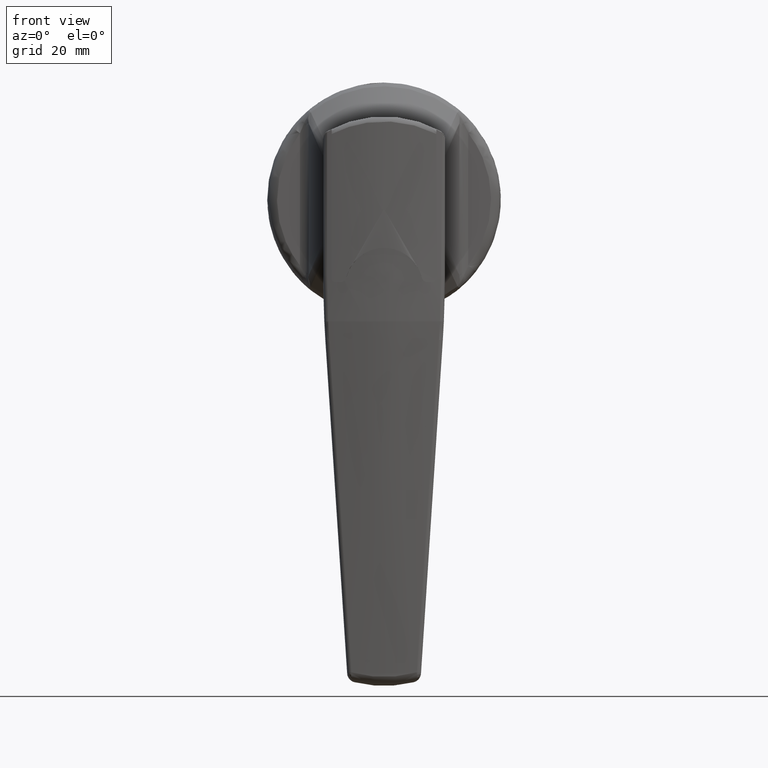
[diagram: clean part render]
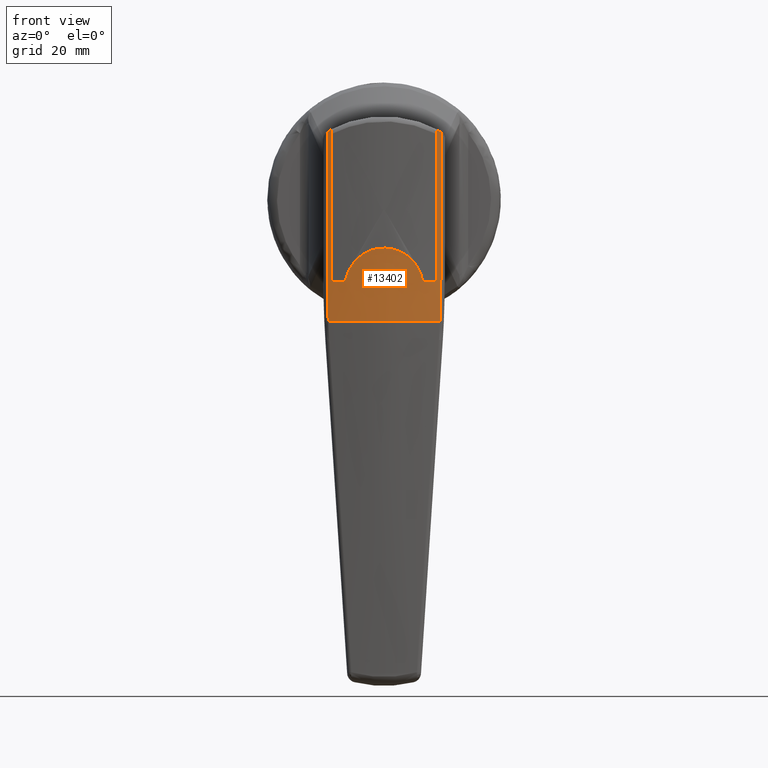
[diagram: same view with one face highlighted and labeled with its STEP entity id]
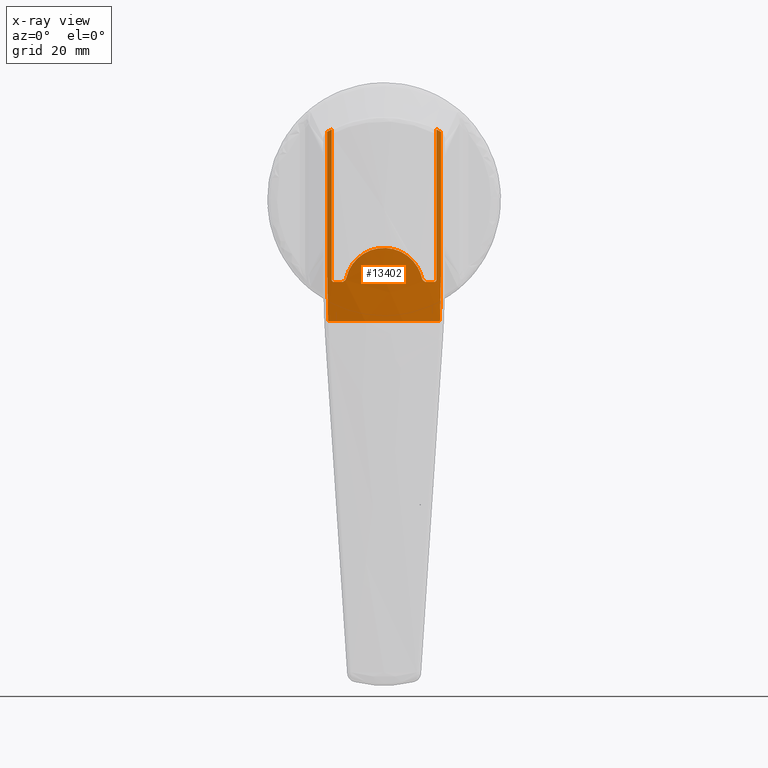
[diagram: x-ray of the same camera — body ghosted, the highlighted face saturated]
A machine part, front view. The second image highlights one B-rep face of the part: STEP entity #13402.
The next image is the same camera in x-ray: the body ghosted, the highlighted face saturated — about 0% of this face is hidden behind the body in this view.
In plain terms, the highlighted face is a freeform B-spline surface patch.
Its self-contained STEP definition (entity closure, byte-faithful):
#7042=CARTESIAN_POINT('',(-43.019451467792393,10.750000000000000,14.354240369807140));
#7043=VERTEX_POINT('',#7042);
#7098=CARTESIAN_POINT('',(-43.019451467792393,-10.750000000000000,14.354240369807259));
#7099=VERTEX_POINT('',#7098);
#7119=CARTESIAN_POINT('',(-42.839532538582553,-11.694915254237300,13.858619929339341));
#7120=VERTEX_POINT('',#7119);
#7121=CARTESIAN_POINT('',(-42.839532538582553,-11.694915254237300,13.858619929339341));
#7122=CARTESIAN_POINT('',(-42.901341911986542,-11.383888417185760,14.030681196149990));
#7123=CARTESIAN_POINT('',(-42.961370084501517,-11.068929598707561,14.195892629508300));
#7124=CARTESIAN_POINT('',(-43.019451467792393,-10.750000000000000,14.354240369807220));
#7125=QUASI_UNIFORM_CURVE('',3,(#7121,#7122,#7123,#7124),.UNSPECIFIED.,.F.,.U.);
#7126=EDGE_CURVE('',#7120,#7099,#7125,.T.);
#7201=CARTESIAN_POINT('',(-42.839532538582553,11.694915254237280,13.858619929339460));
#7202=VERTEX_POINT('',#7201);
#7210=CARTESIAN_POINT('',(-43.019451467792393,10.750000000000000,14.354240369807140));
#7211=CARTESIAN_POINT('',(-42.961370084501567,11.068929598707291,14.195892629507650));
#7212=CARTESIAN_POINT('',(-42.901341911987259,11.383888417181980,14.030681196142041));
#7213=CARTESIAN_POINT('',(-42.839532538582553,11.694915254237280,13.858619929339460));
#7214=QUASI_UNIFORM_CURVE('',3,(#7210,#7211,#7212,#7213),.UNSPECIFIED.,.F.,.U.);
#7215=EDGE_CURVE('',#7043,#7202,#7214,.T.);
#8260=CARTESIAN_POINT('',(-42.881888981082398,-11.479719629846439,-25.023209401043751));
#8261=VERTEX_POINT('',#8260);
#8275=CARTESIAN_POINT('',(-42.881888981082398,11.479719629846420,-25.023209401043552));
#8276=VERTEX_POINT('',#8275);
#8277=CARTESIAN_POINT('',(-42.881888981082412,11.479719629846450,-25.023209401043509));
#8278=CARTESIAN_POINT('',(-45.119628294124432,1.040834E-014,-25.111070103527645));
#8279=CARTESIAN_POINT('',(-42.881888981082398,-11.479719629846439,-25.023209401043751));
#8287=(BOUNDED_CURVE()B_SPLINE_CURVE(2,(#8277,#8278,#8279),.UNSPECIFIED.,.F.,.U.)CURVE()GEOMETRIC_REPRESENTATION_ITEM()QUASI_UNIFORM_CURVE()RATIONAL_B_SPLINE_CURVE((1.0,0.981526028015687,1.0))REPRESENTATION_ITEM(''));
#8288=EDGE_CURVE('',#8276,#8261,#8287,.T.);
#8481=CARTESIAN_POINT('',(-42.839532538582553,11.694915254237300,-15.848482385090350));
#8482=VERTEX_POINT('',#8481);
#8506=CARTESIAN_POINT('',(-42.839532538582553,11.694915254237300,-15.848482385090350));
#8507=CARTESIAN_POINT('',(-42.839532538582553,11.694915254237300,-18.908472395176020));
#8508=CARTESIAN_POINT('',(-42.853924715236602,11.623177775168900,-21.966713340360322));
#8509=CARTESIAN_POINT('',(-42.881888981082398,11.479719629846400,-25.023209401043552));
#8510=QUASI_UNIFORM_CURVE('',3,(#8506,#8507,#8508,#8509),.UNSPECIFIED.,.F.,.U.);
#8511=EDGE_CURVE('',#8482,#8276,#8510,.T.);
#8676=CARTESIAN_POINT('',(-42.839532538582553,-11.694915254237300,-15.848482385090501));
#8677=VERTEX_POINT('',#8676);
#8691=CARTESIAN_POINT('',(-42.881888981082398,-11.479719629846439,-25.023209401043751));
#8692=CARTESIAN_POINT('',(-42.853924715236602,-11.623177775168941,-21.966713340360510));
#8693=CARTESIAN_POINT('',(-42.839532538582553,-11.694915254237300,-18.908472395176190));
#8694=CARTESIAN_POINT('',(-42.839532538582553,-11.694915254237300,-15.848482385090501));
#8695=QUASI_UNIFORM_CURVE('',3,(#8691,#8692,#8693,#8694),.UNSPECIFIED.,.F.,.U.);
#8696=EDGE_CURVE('',#8261,#8677,#8695,.T.);
#8723=CARTESIAN_POINT('',(-42.839532538582553,11.694915254237280,13.858619929339460));
#8724=CARTESIAN_POINT('',(-42.839532538582553,11.694915254237300,-15.848482385090350));
#8725=QUASI_UNIFORM_CURVE('',1,(#8723,#8724),.UNSPECIFIED.,.F.,.U.);
#8726=EDGE_CURVE('',#7202,#8482,#8725,.T.);
#8953=CARTESIAN_POINT('',(-42.839532538582553,-11.694915254237300,-15.848482385090501));
#8954=CARTESIAN_POINT('',(-42.839532538582553,-11.694915254237300,13.858619929339341));
#8955=QUASI_UNIFORM_CURVE('',1,(#8953,#8954),.UNSPECIFIED.,.F.,.U.);
#8956=EDGE_CURVE('',#8677,#7120,#8955,.T.);
#13162=CARTESIAN_POINT('',(-42.601125138225676,-12.836447202523480,-26.052254448952223));
#13163=CARTESIAN_POINT('',(-42.601125138225676,-12.836447202523480,15.364402740276251));
#13164=CARTESIAN_POINT('',(-45.412677927788920,0.001010823073989,-26.052254448952237));
#13165=CARTESIAN_POINT('',(-45.412677927788920,0.001010823073989,15.364402740276248));
#13166=CARTESIAN_POINT('',(-42.600702609557281,12.838376302685981,-26.052254448952223));
#13167=CARTESIAN_POINT('',(-42.600702609557281,12.838376302685981,15.364402740276246));
#13175=(BOUNDED_SURFACE()B_SPLINE_SURFACE(1,2,((#13162,#13164,#13166),(#13163,#13165,#13167)),.UNSPECIFIED.,.F.,.F.,.U.)B_SPLINE_SURFACE_WITH_KNOTS((2,2),(3,3),(0.0,41.416657189228467),(0.0,25.975575192602971),.UNSPECIFIED.)GEOMETRIC_REPRESENTATION_ITEM()RATIONAL_B_SPLINE_SURFACE(((0.998637714431950,0.974649205320999,0.996871241973175),(0.998637714431950,0.974649205320999,0.996871241973175)))REPRESENTATION_ITEM('')SURFACE());
#13176=ORIENTED_EDGE('',*,*,#8956,.T.);
#13177=ORIENTED_EDGE('',*,*,#7126,.T.);
#13178=CARTESIAN_POINT('',(-43.019451467792393,-10.750000000000000,-16.500000000000000));
#13179=VERTEX_POINT('',#13178);
#13180=CARTESIAN_POINT('',(-43.019451467792393,-10.750000000000000,14.354240369807259));
#13181=CARTESIAN_POINT('',(-43.019451467792393,-10.750000000000000,-16.500000000000000));
#13182=QUASI_UNIFORM_CURVE('',1,(#13180,#13181),.UNSPECIFIED.,.F.,.U.);
#13183=EDGE_CURVE('',#7099,#13179,#13182,.T.);
#13184=ORIENTED_EDGE('',*,*,#13183,.T.);
#13185=CARTESIAN_POINT('',(-43.108323714092812,-10.250000000000000,-17.0));
#13186=VERTEX_POINT('',#13185);
#13187=CARTESIAN_POINT('',(-43.019451467792393,-10.750000000000000,-16.500000000000000));
#13188=CARTESIAN_POINT('',(-43.019451467792393,-10.750000000000000,-16.533139710101839));
#13189=CARTESIAN_POINT('',(-43.020054387081409,-10.746690788523990,-16.566125015134560));
#13190=CARTESIAN_POINT('',(-43.021812289179813,-10.737028951464691,-16.614330069067559));
#13191=CARTESIAN_POINT('',(-43.022541430713787,-10.733020019313230,-16.630241862539169));
#13192=CARTESIAN_POINT('',(-43.024289422203019,-10.723401515551229,-16.661747602420650));
#13193=CARTESIAN_POINT('',(-43.025315350163467,-10.717752919887390,-16.677424001795480));
#13194=CARTESIAN_POINT('',(-43.028774569679079,-10.698687343508830,-16.723087314027900));
#13195=CARTESIAN_POINT('',(-43.031586123626418,-10.683169041589830,-16.751863271700529));
#13196=CARTESIAN_POINT('',(-43.038181843660531,-10.646652903158740,-16.806164989244831));
#13197=CARTESIAN_POINT('',(-43.042006442946040,-10.625429077183190,-16.831837655734141));
#13198=CARTESIAN_POINT('',(-43.050314645507029,-10.579151545575391,-16.877786291179390));
#13199=CARTESIAN_POINT('',(-43.054822265617062,-10.553966121124850,-16.898340774136859));
#13200=CARTESIAN_POINT('',(-43.064536370225952,-10.499456612439030,-16.934559746918751));
#13201=CARTESIAN_POINT('',(-43.069689637373699,-10.470428329088550,-16.949954489000721));
#13202=CARTESIAN_POINT('',(-43.080265960076680,-10.410575043370500,-16.974619158782321));
#13203=CARTESIAN_POINT('',(-43.085754871203171,-10.379378676195230,-16.984078118320060));
#13204=CARTESIAN_POINT('',(-43.096992310177583,-10.315193304142570,-16.996810124278170));
#13205=CARTESIAN_POINT('',(-43.102643062656277,-10.282763778658810,-17.0));
#13206=CARTESIAN_POINT('',(-43.108323714092812,-10.250000000000000,-17.0));
#13207=B_SPLINE_CURVE_WITH_KNOTS('',3,(#13187,#13188,#13189,#13190,#13191,#13192,#13193,#13194,#13195,#13196,#13197,#13198,#13199,#13200,#13201,#13202,#13203,#13204,#13205,#13206),.UNSPECIFIED.,.F.,.U.,(4,2,2,2,2,2,2,2,2,4),(0.0,0.125000000000000,0.187499999999993,0.249999999999987,0.374999999999989,0.499999999999992,0.624999999999994,0.749999999999996,0.874999999999998,1.0),.UNSPECIFIED.);
#13208=EDGE_CURVE('',#13179,#13186,#13207,.T.);
#13209=ORIENTED_EDGE('',*,*,#13208,.T.);
#13210=CARTESIAN_POINT('',(-43.345192364419553,-8.774963999999999,-16.999999999999751));
#13211=VERTEX_POINT('',#13210);
#13212=CARTESIAN_POINT('',(-43.108323714092698,-10.249999999999989,-17.0));
#13213=CARTESIAN_POINT('',(-43.235940442610534,-9.513956556207079,-17.000000000000004));
#13214=CARTESIAN_POINT('',(-43.345192364419553,-8.774963999999999,-16.999999999999751));
#13222=(BOUNDED_CURVE()B_SPLINE_CURVE(2,(#13212,#13213,#13214),.UNSPECIFIED.,.F.,.U.)CURVE()GEOMETRIC_REPRESENTATION_ITEM()QUASI_UNIFORM_CURVE()RATIONAL_B_SPLINE_CURVE((1.0,0.999922502623509,1.0))REPRESENTATION_ITEM(''));
#13223=EDGE_CURVE('',#13186,#13211,#13222,.T.);
#13224=ORIENTED_EDGE('',*,*,#13223,.T.);
#13225=CARTESIAN_POINT('',(-43.481171079921253,-7.799968356974010,-16.222222277615899));
#13226=VERTEX_POINT('',#13225);
#13227=CARTESIAN_POINT('',(-43.345192364419553,-8.774963999999999,-16.999999999999751));
#13228=CARTESIAN_POINT('',(-43.361858127380131,-8.662234863821738,-17.0));
#13229=CARTESIAN_POINT('',(-43.377742649940757,-8.552571933962293,-16.981467891168180));
#13230=CARTESIAN_POINT('',(-43.400473020614079,-8.392704130729644,-16.925776298817951));
#13231=CARTESIAN_POINT('',(-43.407671116193349,-8.341563738080223,-16.902924314429519));
#13232=CARTESIAN_POINT('',(-43.421302362255027,-8.243884698235911,-16.849154214414501));
#13233=CARTESIAN_POINT('',(-43.427746740136520,-8.197265971100675,-16.818208582672661));
#13234=CARTESIAN_POINT('',(-43.439897694857713,-8.108673070887935,-16.747834670991089));
#13235=CARTESIAN_POINT('',(-43.445463317731843,-8.067727125067869,-16.709186329380501));
#13236=CARTESIAN_POINT('',(-43.455549667890999,-7.993043762474240,-16.625883367083372));
#13237=CARTESIAN_POINT('',(-43.460088234132407,-7.959174925207861,-16.581125349781519));
#13238=CARTESIAN_POINT('',(-43.468152718043108,-7.898684358404708,-16.485131401204381));
#13239=CARTESIAN_POINT('',(-43.471588700001398,-7.872738546361811,-16.434898576226981));
#13240=CARTESIAN_POINT('',(-43.477262024304522,-7.829755236340488,-16.331252070028469));
#13241=CARTESIAN_POINT('',(-43.479514519978977,-7.812603043267354,-16.277658385959491));
#13242=CARTESIAN_POINT('',(-43.481171079921253,-7.799968356974010,-16.222222277615899));
#13243=B_SPLINE_CURVE_WITH_KNOTS('',3,(#13227,#13228,#13229,#13230,#13231,#13232,#13233,#13234,#13235,#13236,#13237,#13238,#13239,#13240,#13241,#13242),.UNSPECIFIED.,.F.,.U.,(4,2,2,2,2,2,2,4),(0.0,0.250000000000003,0.375000000000002,0.500000000000002,0.625000000000001,0.750000000000001,0.875000000000000,1.0),.UNSPECIFIED.);
#13244=EDGE_CURVE('',#13211,#13226,#13243,.T.);
#13245=ORIENTED_EDGE('',*,*,#13244,.T.);
#13246=CARTESIAN_POINT('',(-43.481171132575298,7.799967955378290,-16.222222215297801));
#13247=VERTEX_POINT('',#13246);
#13248=CARTESIAN_POINT('',(-43.481171132575298,7.799967955378290,-16.222222215297801));
#13249=CARTESIAN_POINT('',(-43.494304539990267,7.699798639609085,-15.782729462477279));
#13250=CARTESIAN_POINT('',(-43.511902356063388,7.563846356588725,-15.356453842861210));
#13251=CARTESIAN_POINT('',(-43.543737431364669,7.307445446477439,-14.736371950649300));
#13252=CARTESIAN_POINT('',(-43.555256201220509,7.213186166092080,-14.532916997524170));
#13253=CARTESIAN_POINT('',(-43.573736648209760,7.058330742804359,-14.232687041355030));
#13254=CARTESIAN_POINT('',(-43.580102422624549,7.004419426490358,-14.133357599612570));
#13255=CARTESIAN_POINT('',(-43.593185134149500,6.892207822557730,-13.936714840754650));
#13256=CARTESIAN_POINT('',(-43.599865775978138,6.834219006494155,-13.839939246136430));
#13257=CARTESIAN_POINT('',(-43.633863206426732,6.535032692503878,-13.363640848590570));
#13258=CARTESIAN_POINT('',(-43.662957698728533,6.266306731887958,-13.006694846535080));
#13259=CARTESIAN_POINT('',(-43.707578609984829,5.819987172072784,-12.506579078539341));
#13260=CARTESIAN_POINT('',(-43.722616532298993,5.663970179238483,-12.345789318778831));
#13261=CARTESIAN_POINT('',(-43.745185143945378,5.418828087613226,-12.113662742279271));
#13262=CARTESIAN_POINT('',(-43.752717857920253,5.335167940445460,-12.037720269903479));
#13263=CARTESIAN_POINT('',(-43.767712409744398,5.164452690408375,-11.889253323757350));
#13264=CARTESIAN_POINT('',(-43.775137409247179,5.077820185908466,-11.817089312863191));
#13265=CARTESIAN_POINT('',(-43.811809616952686,4.638393620226453,-11.466426466912051));
#13266=CARTESIAN_POINT('',(-43.839694789866847,4.266940458031158,-11.218182058649511));
#13267=CARTESIAN_POINT('',(-43.877666760188824,3.680348467898378,-10.893313428865540));
#13268=CARTESIAN_POINT('',(-43.889682278099663,3.479889802419153,-10.792982615520129));
#13269=CARTESIAN_POINT('',(-43.906530198543969,3.171627372585352,-10.654697898400320));
#13270=CARTESIAN_POINT('',(-43.911953607135032,3.067540053800320,-10.610613563096980));
#13271=CARTESIAN_POINT('',(-43.922357472962808,2.857072036313489,-10.526716031430951));
#13272=CARTESIAN_POINT('',(-43.927307268600053,2.751317284044716,-10.487148894695050));
#13273=CARTESIAN_POINT('',(-43.950753399059792,2.219985276328912,-10.301005142211400));
#13274=CARTESIAN_POINT('',(-43.965339967330060,1.786786701980427,-10.189256519273311));
#13275=CARTESIAN_POINT('',(-43.980185413679152,1.124993913108818,-10.076334888102989));
#13276=CARTESIAN_POINT('',(-43.983961782348793,0.902386733812451,-10.047859609042691));
#13277=CARTESIAN_POINT('',(-43.987768518890867,0.565391239041828,-10.019207908952120));
#13278=CARTESIAN_POINT('',(-43.988727990264387,0.452502077136535,-10.012002247803011));
#13279=CARTESIAN_POINT('',(-43.990009269960780,0.225847344228811,-10.002384155510979));
#13280=CARTESIAN_POINT('',(-43.990327092442939,0.112827858153913,-10.000001557735580));
#13281=CARTESIAN_POINT('',(-43.990328130424729,-0.450758909820702,-9.999993772872175));
#13282=CARTESIAN_POINT('',(-43.985248810516147,-0.896825674690138,-10.037832091084811));
#13283=CARTESIAN_POINT('',(-43.970479206504400,-1.558878802630017,-10.150159211560410));
#13284=CARTESIAN_POINT('',(-43.964363872053859,-1.778382528493541,-10.196912430547309));
#13285=CARTESIAN_POINT('',(-43.953461011399320,-2.105830551696647,-10.281309521940001));
#13286=CARTESIAN_POINT('',(-43.949534616280467,-2.214776062890541,-10.311852812721190));
#13287=CARTESIAN_POINT('',(-43.941131372610428,-2.431638553101778,-10.377666096982820));
#13288=CARTESIAN_POINT('',(-43.936677579095630,-2.538976709623565,-10.412755706057551));
#13289=CARTESIAN_POINT('',(-43.913229785577521,-3.070307754430474,-10.598914294470941));
#13290=CARTESIAN_POINT('',(-43.890703067352540,-3.478334703849205,-10.781886044317300));
#13291=CARTESIAN_POINT('',(-43.852759323193851,-4.065426131005944,-11.106357586830979));
#13292=CARTESIAN_POINT('',(-43.839418298551067,-4.256942982597026,-11.222895109436250));
#13293=CARTESIAN_POINT('',(-43.818556335516000,-4.537821582431432,-11.410549806719930));
#13294=CARTESIAN_POINT('',(-43.811450037198000,-4.630514354271475,-11.475344416843271));
#13295=CARTESIAN_POINT('',(-43.797034338188830,-4.813126008352080,-11.608864600741340));
#13296=CARTESIAN_POINT('',(-43.789753363595487,-4.902694810231952,-11.677324776774091));
#13297=CARTESIAN_POINT('',(-43.753085296577872,-5.342016416354697,-12.027975661631849));
#13298=CARTESIAN_POINT('',(-43.722912069172047,-5.666384265610695,-12.335037614619010));
#13299=CARTESIAN_POINT('',(-43.678281438568547,-6.113143972436181,-12.834789632492701));
#13300=CARTESIAN_POINT('',(-43.663508637946457,-6.255396285350374,-13.007935040034960));
#13301=CARTESIAN_POINT('',(-43.641745961438303,-6.458551703747713,-13.277735320543639));
#13302=CARTESIAN_POINT('',(-43.634547424980390,-6.524658757072391,-13.369489953576061));
#13303=CARTESIAN_POINT('',(-43.620371353287418,-6.652970195059819,-13.555814723718180));
#13304=CARTESIAN_POINT('',(-43.613421269088732,-6.714930248244595,-13.650016574017579));
#13305=CARTESIAN_POINT('',(-43.579441117542913,-7.013948756358104,-14.126135319227680));
#13306=CARTESIAN_POINT('',(-43.554724280466793,-7.218891762341618,-14.523272841724570));
#13307=CARTESIAN_POINT('',(-43.522838322528308,-7.475799478711279,-15.143003385288189));
#13308=CARTESIAN_POINT('',(-43.513073989885079,-7.552972732906025,-15.353605320038190));
#13309=CARTESIAN_POINT('',(-43.499913690354923,-7.655737738097761,-15.675697919373480));
#13310=CARTESIAN_POINT('',(-43.495770496362248,-7.687856346785093,-15.784214652831510));
#13311=CARTESIAN_POINT('',(-43.488030593556580,-7.747529154266059,-16.002844042812949));
#13312=CARTESIAN_POINT('',(-43.484452629333077,-7.774939775512468,-16.112409818520501));
#13313=CARTESIAN_POINT('',(-43.481171079921182,-7.799968356974011,-16.222222277615899));
#13314=B_SPLINE_CURVE_WITH_KNOTS('',3,(#13248,#13249,#13250,#13251,#13252,#13253,#13254,#13255,#13256,#13257,#13258,#13259,#13260,#13261,#13262,#13263,#13264,#13265,#13266,#13267,#13268,#13269,#13270,#13271,#13272,#13273,#13274,#13275,#13276,#13277,#13278,#13279,#13280,#13281,#13282,#13283,#13284,#13285,#13286,#13287,#13288,#13289,#13290,#13291,#13292,#13293,#13294,#13295,#13296,#13297,#13298,#13299,#13300,#13301,#13302,#13303,#13304,#13305,#13306,#13307,#13308,#13309,#13310,#13311,#13312,#13313),.UNSPECIFIED.,.F.,.U.,(4,2,2,2,2,2,2,2,2,2,2,2,2,2,2,2,2,2,2,2,2,2,2,2,2,2,2,2,2,2,2,2,4),(0.0,0.062500000000000,0.093750000000000,0.109375000000000,0.125000000000000,0.187500000000000,0.218749999999999,0.234374999999999,0.249999999999999,0.312499999999999,0.343749999999999,0.359374999999999,0.374999999999999,0.437499999999999,0.468749999999999,0.484374999999999,0.499999999999999,0.562499999999999,0.593749999999999,0.609374999999999,0.624999999999999,0.687500000000000,0.718750000000000,0.734375000000000,0.750000000000000,0.812500000000000,0.843750000000001,0.859375000000001,0.875000000000000,0.937500000000000,0.968750000000000,0.984375000000000,1.0),.UNSPECIFIED.);
#13315=EDGE_CURVE('',#13247,#13226,#13314,.T.);
#13316=ORIENTED_EDGE('',*,*,#13315,.F.);
#13317=CARTESIAN_POINT('',(-43.345192364419603,8.774963999999999,-17.0));
#13318=VERTEX_POINT('',#13317);
#13319=CARTESIAN_POINT('',(-43.481171132575241,7.799967955378211,-16.222222215297819));
#13320=CARTESIAN_POINT('',(-43.480353521448237,7.806203926621913,-16.249582428986781));
#13321=CARTESIAN_POINT('',(-43.479383077386103,7.813598245123402,-16.276719188428999));
#13322=CARTESIAN_POINT('',(-43.477127957334950,7.830748519499552,-16.330537063394651));
#13323=CARTESIAN_POINT('',(-43.475836334964200,7.840557013912312,-16.357326163606530));
#13324=CARTESIAN_POINT('',(-43.471546348347360,7.873059012927758,-16.435615662807439));
#13325=CARTESIAN_POINT('',(-43.468127835644253,7.898870178234225,-16.485384107157731));
#13326=CARTESIAN_POINT('',(-43.462159423207353,7.943639630814391,-16.556492877045638));
#13327=CARTESIAN_POINT('',(-43.460029059737181,7.959576987005685,-16.579601974251901));
#13328=CARTESIAN_POINT('',(-43.455476387868352,7.993518446951032,-16.624609699841830));
#13329=CARTESIAN_POINT('',(-43.453043827413623,8.011598039511879,-16.646579990255209));
#13330=CARTESIAN_POINT('',(-43.445426055887189,8.068002958750679,-16.709492198602060));
#13331=CARTESIAN_POINT('',(-43.439894050855322,8.108696507837061,-16.747801043955889));
#13332=CARTESIAN_POINT('',(-43.430903502793257,8.174251474762418,-16.799952595555730));
#13333=CARTESIAN_POINT('',(-43.427790654310790,8.196859584039238,-16.816446444695892));
#13334=CARTESIAN_POINT('',(-43.421323725954423,8.243616976405683,-16.847620111445782));
#13335=CARTESIAN_POINT('',(-43.417957569604120,8.267851987673643,-16.862336908584311));
#13336=CARTESIAN_POINT('',(-43.407667482935352,8.341591535098365,-16.902960937402490));
#13337=CARTESIAN_POINT('',(-43.400505875718970,8.392466777678612,-16.925631887721710));
#13338=CARTESIAN_POINT('',(-43.389300316732047,8.471287317959297,-16.953181568195401));
#13339=CARTESIAN_POINT('',(-43.385487622612082,8.497980996406312,-16.961282990687419));
#13340=CARTESIAN_POINT('',(-43.377701427831759,8.552224562358632,-16.975280326564580));
#13341=CARTESIAN_POINT('',(-43.373716349186083,8.579853537357110,-16.981182743687580));
#13342=CARTESIAN_POINT('',(-43.361683716278762,8.662861190098051,-16.995280682312330));
#13343=CARTESIAN_POINT('',(-43.353513942084888,8.718675892214739,-17.0));
#13344=CARTESIAN_POINT('',(-43.345192364419603,8.774963999999999,-17.0));
#13345=B_SPLINE_CURVE_WITH_KNOTS('',3,(#13319,#13320,#13321,#13322,#13323,#13324,#13325,#13326,#13327,#13328,#13329,#13330,#13331,#13332,#13333,#13334,#13335,#13336,#13337,#13338,#13339,#13340,#13341,#13342,#13343,#13344),.UNSPECIFIED.,.F.,.U.,(4,2,2,2,2,2,2,2,2,2,2,2,4),(0.0,0.062499999999996,0.124999999999992,0.249999999999991,0.312499999999994,0.374999999999997,0.499999999999997,0.562499999999997,0.624999999999998,0.749999999999998,0.812499999999998,0.874999999999997,1.0),.UNSPECIFIED.);
#13346=EDGE_CURVE('',#13247,#13318,#13345,.T.);
#13347=ORIENTED_EDGE('',*,*,#13346,.T.);
#13348=CARTESIAN_POINT('',(-43.108323714092698,10.250000000000000,-17.0));
#13349=VERTEX_POINT('',#13348);
#13350=CARTESIAN_POINT('',(-43.345192364419511,8.774963999999958,-17.0));
#13351=CARTESIAN_POINT('',(-43.235940442610534,9.513956556207065,-17.000000000000004));
#13352=CARTESIAN_POINT('',(-43.108323714092698,10.249999999999980,-17.0));
#13360=(BOUNDED_CURVE()B_SPLINE_CURVE(2,(#13350,#13351,#13352),.UNSPECIFIED.,.F.,.U.)CURVE()GEOMETRIC_REPRESENTATION_ITEM()QUASI_UNIFORM_CURVE()RATIONAL_B_SPLINE_CURVE((1.0,0.999922502623509,1.0))REPRESENTATION_ITEM(''));
#13361=EDGE_CURVE('',#13318,#13349,#13360,.T.);
#13362=ORIENTED_EDGE('',*,*,#13361,.T.);
#13363=CARTESIAN_POINT('',(-43.019451467792393,10.750000000000000,-16.500000000000000));
#13364=VERTEX_POINT('',#13363);
#13365=CARTESIAN_POINT('',(-43.108323714092812,10.250000000000000,-17.0));
#13366=CARTESIAN_POINT('',(-43.102635192664721,10.282809169696220,-17.0));
#13367=CARTESIAN_POINT('',(-43.097012199080233,10.315078248791020,-16.996801998451520));
#13368=CARTESIAN_POINT('',(-43.088674245250907,10.362704671595941,-16.987400767370382));
#13369=CARTESIAN_POINT('',(-43.085911176648693,10.378449670284610,-16.983494022711529));
#13370=CARTESIAN_POINT('',(-43.080419194240051,10.409672963687060,-16.974099496373270));
#13371=CARTESIAN_POINT('',(-43.077679294372622,10.425213142778439,-16.968579313558330));
#13372=CARTESIAN_POINT('',(-43.069680998250000,10.470477814506550,-16.949949338591399));
#13373=CARTESIAN_POINT('',(-43.064595176860600,10.499125406473960,-16.934736788582839));
#13374=CARTESIAN_POINT('',(-43.054925579872517,10.553387585284209,-16.898767496912111));
#13375=CARTESIAN_POINT('',(-43.050310214620147,10.579176333324460,-16.877767846823570));
#13376=CARTESIAN_POINT('',(-43.041993777463041,10.625499517729111,-16.831761535895669));
#13377=CARTESIAN_POINT('',(-43.038245559225963,10.646299743182590,-16.806641624782959));
#13378=CARTESIAN_POINT('',(-43.033265074955992,10.673873999520850,-16.765709381946198));
#13379=CARTESIAN_POINT('',(-43.031707855994860,10.682483090345210,-16.751455024372071));
#13380=CARTESIAN_POINT('',(-43.028881342921750,10.698093262555080,-16.722449276845840));
#13381=CARTESIAN_POINT('',(-43.027603448550707,10.705142037514680,-16.707638824223800));
#13382=CARTESIAN_POINT('',(-43.024171313535120,10.724058246300080,-16.662300344014209));
#13383=CARTESIAN_POINT('',(-43.022411452302663,10.733735821455850,-16.630785675212611));
#13384=CARTESIAN_POINT('',(-43.020035808369407,10.746792892127720,-16.565590091719450));
#13385=CARTESIAN_POINT('',(-43.019451467792393,10.750000000000000,-16.532859274876209));
#13386=CARTESIAN_POINT('',(-43.019451467792393,10.750000000000000,-16.500000000000000));
#13387=B_SPLINE_CURVE_WITH_KNOTS('',3,(#13365,#13366,#13367,#13368,#13369,#13370,#13371,#13372,#13373,#13374,#13375,#13376,#13377,#13378,#13379,#13380,#13381,#13382,#13383,#13384,#13385,#13386),.UNSPECIFIED.,.F.,.U.,(4,2,2,2,2,2,2,2,2,2,4),(0.0,0.125000000000003,0.187500000000003,0.250000000000004,0.375000000000000,0.499999999999997,0.624999999999994,0.687499999999994,0.749999999999994,0.874999999999997,1.0),.UNSPECIFIED.);
#13388=EDGE_CURVE('',#13349,#13364,#13387,.T.);
#13389=ORIENTED_EDGE('',*,*,#13388,.T.);
#13390=CARTESIAN_POINT('',(-43.019451467792393,10.750000000000000,-16.500000000000000));
#13391=CARTESIAN_POINT('',(-43.019451467792393,10.750000000000000,14.354240369807140));
#13392=QUASI_UNIFORM_CURVE('',1,(#13390,#13391),.UNSPECIFIED.,.F.,.U.);
#13393=EDGE_CURVE('',#13364,#7043,#13392,.T.);
#13394=ORIENTED_EDGE('',*,*,#13393,.T.);
#13395=ORIENTED_EDGE('',*,*,#7215,.T.);
#13396=ORIENTED_EDGE('',*,*,#8726,.T.);
#13397=ORIENTED_EDGE('',*,*,#8511,.T.);
#13398=ORIENTED_EDGE('',*,*,#8288,.T.);
#13399=ORIENTED_EDGE('',*,*,#8696,.T.);
#13400=EDGE_LOOP('',(#13176,#13177,#13184,#13209,#13224,#13245,#13316,#13347,#13362,#13389,#13394,#13395,#13396,#13397,#13398,#13399));
#13401=FACE_OUTER_BOUND('',#13400,.T.);
#13402=ADVANCED_FACE('',(#13401),#13175,.T.);